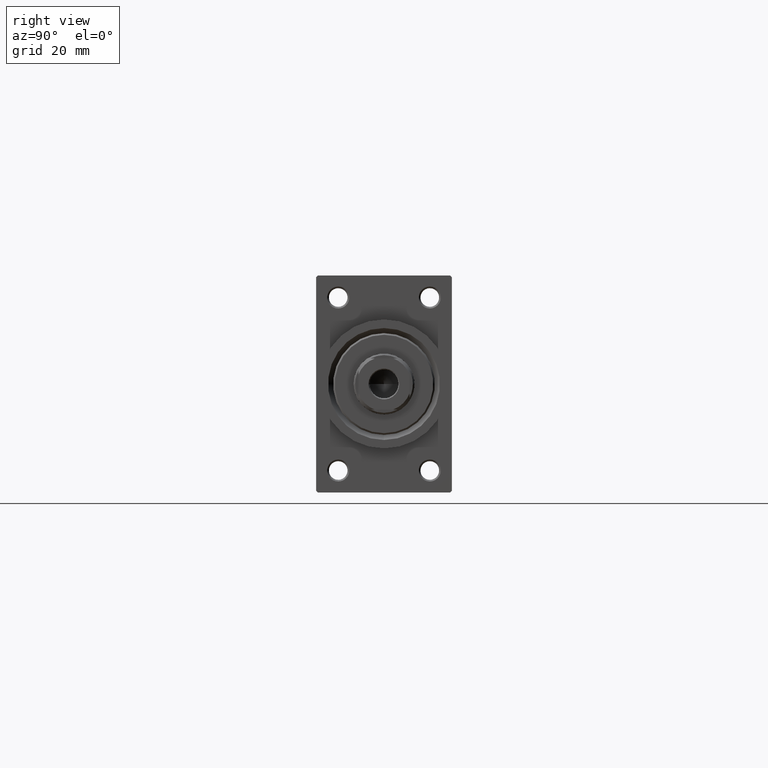
[diagram: clean part render]
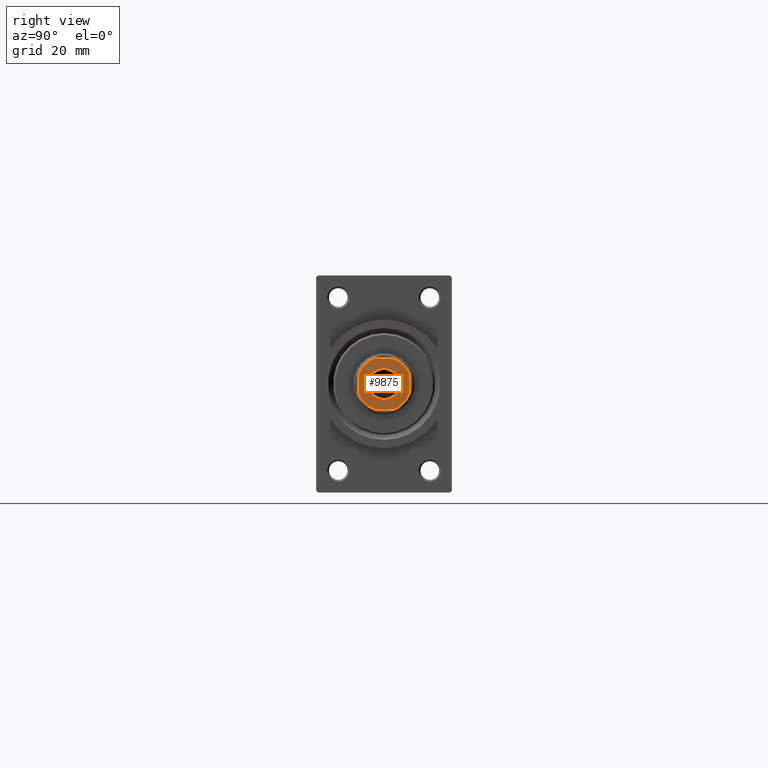
[diagram: same view with one face highlighted and labeled with its STEP entity id]
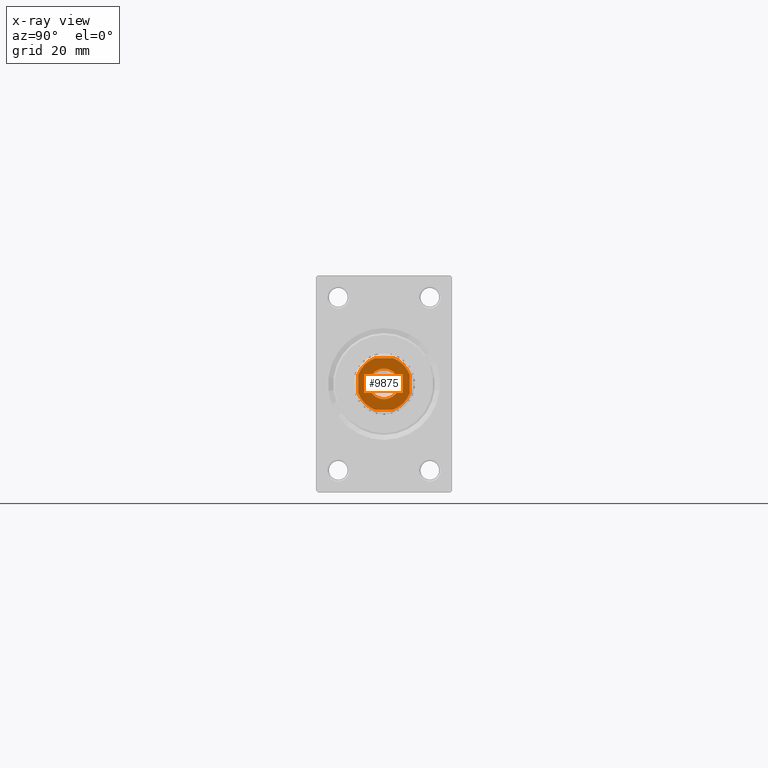
[diagram: x-ray of the same camera — body ghosted, the highlighted face saturated]
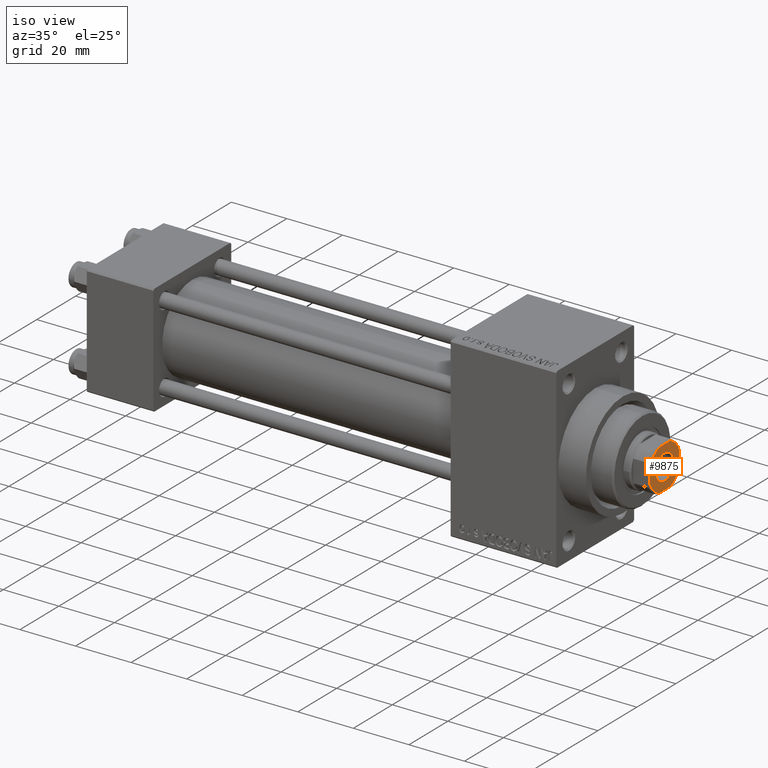
[diagram: same view with one face highlighted and labeled with its STEP entity id]
A machine part, right view. The second image highlights one B-rep face of the part: STEP entity #9875.
The next image is the same camera in x-ray: the body ghosted, the highlighted face saturated — about 0% of this face is hidden behind the body in this view.
A second angle (iso view) of the same face is appended — the face is thin or edge-on in the first view.
In plain terms, the highlighted planar face has unit normal (1, 0, 0).
Its self-contained STEP definition (entity closure, byte-faithful):
#1196 = ORIENTED_EDGE ( 'NONE', *, *, #24158, .T. ) ;
#2098 = VECTOR ( 'NONE', #12220, 1000.000000000000000 ) ;
#2484 = DIRECTION ( 'NONE',  ( -0.000000000000000000, 0.000000000000000000, 1.000000000000000000 ) ) ;
#3048 = EDGE_CURVE ( 'NONE', #38035, #27329, #14470, .T. ) ;
#3326 = DIRECTION ( 'NONE',  ( 1.000000000000000000, 0.000000000000000000, 0.000000000000000000 ) ) ;
#3566 = DIRECTION ( 'NONE',  ( 0.000000000000000000, -0.000000000000000000, -1.000000000000000000 ) ) ;
#4807 = VECTOR ( 'NONE', #37058, 1000.000000000000000 ) ;
#5087 = VERTEX_POINT ( 'NONE', #12644 ) ;
#5282 = CARTESIAN_POINT ( 'NONE',  ( -7.499999999999998224, -7.500000000000000000, 170.0000000000000000 ) ) ;
#5812 = CARTESIAN_POINT ( 'NONE',  ( 7.500000000000000888, -2.783882181414953916, 170.0000000000000000 ) ) ;
#6066 = CARTESIAN_POINT ( 'NONE',  ( -7.500000000000000000, 7.499999999999998224, 170.0000000000000000 ) ) ;
#6488 = DIRECTION ( 'NONE',  ( 1.000000000000000000, 0.000000000000000000, 0.000000000000000000 ) ) ;
#7458 = DIRECTION ( 'NONE',  ( 0.000000000000000000, -0.000000000000000000, -1.000000000000000000 ) ) ;
#7499 = CARTESIAN_POINT ( 'NONE',  ( -7.499999999999999112, 2.783882181415014756, 170.0000000000000000 ) ) ;
#8228 = CARTESIAN_POINT ( 'NONE',  ( 2.783882181414953916, 7.499999999999999112, 170.0000000000000000 ) ) ;
#8330 = EDGE_LOOP ( 'NONE', ( #32561, #13946, #25355, #25763, #10414, #9895, #1196, #32425 ) ) ;
#8392 = EDGE_CURVE ( 'NONE', #27329, #38035, #33639, .T. ) ;
#8532 = DIRECTION ( 'NONE',  ( -0.000000000000000000, 0.000000000000000000, 1.000000000000000000 ) ) ;
#8844 = EDGE_CURVE ( 'NONE', #28068, #18750, #27554, .T. ) ;
#9436 = DIRECTION ( 'NONE',  ( 1.156482317317871725E-16, -1.000000000000000000, 0.000000000000000000 ) ) ;
#9875 = ADVANCED_FACE ( 'NONE', ( #38728, #41817 ), #27066, .T. ) ;
#9895 = ORIENTED_EDGE ( 'NONE', *, *, #42364, .T. ) ;
#10414 = ORIENTED_EDGE ( 'NONE', *, *, #17924, .T. ) ;
#10794 = EDGE_CURVE ( 'NONE', #43196, #28068, #37296, .T. ) ;
#11938 = CARTESIAN_POINT ( 'NONE',  ( 0.000000000000000000, 0.000000000000000000, 170.0000000000000000 ) ) ;
#12068 = CARTESIAN_POINT ( 'NONE',  ( 7.500000000000000000, 7.500000000000000000, 170.0000000000000000 ) ) ;
#12156 = EDGE_CURVE ( 'NONE', #22885, #20087, #12410, .T. ) ;
#12220 = DIRECTION ( 'NONE',  ( 1.000000000000000000, 0.000000000000000000, 0.000000000000000000 ) ) ;
#12298 = CARTESIAN_POINT ( 'NONE',  ( -7.500000000000000000, 7.499999999999998224, 170.0000000000000000 ) ) ;
#12410 = CIRCLE ( 'NONE', #35175, 8.000000000000000000 ) ;
#12644 = CARTESIAN_POINT ( 'NONE',  ( -2.783882181415011203, -7.500000000000000000, 170.0000000000000000 ) ) ;
#13108 = AXIS2_PLACEMENT_3D ( 'NONE', #21663, #3566, #3326 ) ;
#13686 = CIRCLE ( 'NONE', #41814, 8.000000000000000000 ) ;
#13946 = ORIENTED_EDGE ( 'NONE', *, *, #8844, .T. ) ;
#14470 = CIRCLE ( 'NONE', #34251, 4.550000000000012257 ) ;
#15198 = CARTESIAN_POINT ( 'NONE',  ( 7.500000000000000888, 2.783882181414950807, 170.0000000000000000 ) ) ;
#15657 = LINE ( 'NONE', #6066, #45238 ) ;
#15955 = VECTOR ( 'NONE', #26798, 1000.000000000000000 ) ;
#16047 = CARTESIAN_POINT ( 'NONE',  ( 2.783882181414957024, -7.500000000000000000, 170.0000000000000000 ) ) ;
#16328 = LINE ( 'NONE', #12298, #15955 ) ;
#16403 = CARTESIAN_POINT ( 'NONE',  ( 0.000000000000000000, 0.000000000000000000, 170.0000000000000000 ) ) ;
#17924 = EDGE_CURVE ( 'NONE', #20087, #28238, #15657, .T. ) ;
#18750 = VERTEX_POINT ( 'NONE', #8228 ) ;
#19306 = DIRECTION ( 'NONE',  ( -0.000000000000000000, 0.000000000000000000, 1.000000000000000000 ) ) ;
#19760 = DIRECTION ( 'NONE',  ( 1.000000000000000000, 0.000000000000000000, 0.000000000000000000 ) ) ;
#20087 = VERTEX_POINT ( 'NONE', #7499 ) ;
#20393 = CARTESIAN_POINT ( 'NONE',  ( 0.000000000000000000, 0.000000000000000000, 170.0000000000000000 ) ) ;
#20656 = DIRECTION ( 'NONE',  ( -0.000000000000000000, 0.000000000000000000, 1.000000000000000000 ) ) ;
#21548 = CARTESIAN_POINT ( 'NONE',  ( -7.499999999999997335, -2.783882181415016088, 170.0000000000000000 ) ) ;
#21663 = CARTESIAN_POINT ( 'NONE',  ( 0.000000000000000000, 0.000000000000000000, 170.0000000000000000 ) ) ;
#22885 = VERTEX_POINT ( 'NONE', #45829 ) ;
#23033 = DIRECTION ( 'NONE',  ( 1.000000000000000000, 0.000000000000000000, 0.000000000000000000 ) ) ;
#23494 = DIRECTION ( 'NONE',  ( 1.000000000000000000, 0.000000000000000000, 0.000000000000000000 ) ) ;
#23989 = EDGE_LOOP ( 'NONE', ( #46958, #35645 ) ) ;
#24158 = EDGE_CURVE ( 'NONE', #5087, #32024, #37691, .T. ) ;
#24163 = CARTESIAN_POINT ( 'NONE',  ( 0.000000000000000000, 0.000000000000000000, 170.0000000000000000 ) ) ;
#25355 = ORIENTED_EDGE ( 'NONE', *, *, #37729, .T. ) ;
#25763 = ORIENTED_EDGE ( 'NONE', *, *, #12156, .T. ) ;
#26798 = DIRECTION ( 'NONE',  ( -1.000000000000000000, -1.156482317317871478E-16, -0.000000000000000000 ) ) ;
#27066 = PLANE ( 'NONE',  #40565 ) ;
#27180 = CIRCLE ( 'NONE', #43142, 7.999999999999981348 ) ;
#27329 = VERTEX_POINT ( 'NONE', #39502 ) ;
#27532 = EDGE_CURVE ( 'NONE', #32024, #43196, #27180, .T. ) ;
#27554 = CIRCLE ( 'NONE', #28332, 7.999999999999979572 ) ;
#28068 = VERTEX_POINT ( 'NONE', #15198 ) ;
#28238 = VERTEX_POINT ( 'NONE', #21548 ) ;
#28332 = AXIS2_PLACEMENT_3D ( 'NONE', #33517, #8532, #23033 ) ;
#31557 = DIRECTION ( 'NONE',  ( -0.000000000000000000, 0.000000000000000000, 1.000000000000000000 ) ) ;
#32024 = VERTEX_POINT ( 'NONE', #16047 ) ;
#32425 = ORIENTED_EDGE ( 'NONE', *, *, #27532, .T. ) ;
#32561 = ORIENTED_EDGE ( 'NONE', *, *, #10794, .T. ) ;
#33517 = CARTESIAN_POINT ( 'NONE',  ( 0.000000000000000000, 0.000000000000000000, 170.0000000000000000 ) ) ;
#33639 = CIRCLE ( 'NONE', #13108, 4.550000000000012257 ) ;
#34251 = AXIS2_PLACEMENT_3D ( 'NONE', #39820, #7458, #6488 ) ;
#35175 = AXIS2_PLACEMENT_3D ( 'NONE', #24163, #2484, #38690 ) ;
#35645 = ORIENTED_EDGE ( 'NONE', *, *, #3048, .T. ) ;
#35681 = CARTESIAN_POINT ( 'NONE',  ( -4.550000000000012257, 5.572142936120472118E-16, 170.0000000000000000 ) ) ;
#37058 = DIRECTION ( 'NONE',  ( -1.156482317317871478E-16, 1.000000000000000000, -0.000000000000000000 ) ) ;
#37296 = LINE ( 'NONE', #12068, #4807 ) ;
#37691 = LINE ( 'NONE', #5282, #2098 ) ;
#37729 = EDGE_CURVE ( 'NONE', #18750, #22885, #16328, .T. ) ;
#38035 = VERTEX_POINT ( 'NONE', #35681 ) ;
#38690 = DIRECTION ( 'NONE',  ( 1.000000000000000000, 0.000000000000000000, 0.000000000000000000 ) ) ;
#38728 = FACE_BOUND ( 'NONE', #23989, .T. ) ;
#39502 = CARTESIAN_POINT ( 'NONE',  ( 4.550000000000012257, 0.000000000000000000, 170.0000000000000000 ) ) ;
#39820 = CARTESIAN_POINT ( 'NONE',  ( 0.000000000000000000, 0.000000000000000000, 170.0000000000000000 ) ) ;
#40565 = AXIS2_PLACEMENT_3D ( 'NONE', #20393, #31557, #23494 ) ;
#41814 = AXIS2_PLACEMENT_3D ( 'NONE', #11938, #19306, #19760 ) ;
#41817 = FACE_OUTER_BOUND ( 'NONE', #8330, .T. ) ;
#42364 = EDGE_CURVE ( 'NONE', #28238, #5087, #13686, .T. ) ;
#43142 = AXIS2_PLACEMENT_3D ( 'NONE', #16403, #20656, #45881 ) ;
#43196 = VERTEX_POINT ( 'NONE', #5812 ) ;
#45238 = VECTOR ( 'NONE', #9436, 1000.000000000000000 ) ;
#45829 = CARTESIAN_POINT ( 'NONE',  ( -2.783882181415014312, 7.499999999999999112, 170.0000000000000000 ) ) ;
#45881 = DIRECTION ( 'NONE',  ( 1.000000000000000000, 0.000000000000000000, 0.000000000000000000 ) ) ;
#46958 = ORIENTED_EDGE ( 'NONE', *, *, #8392, .T. ) ;